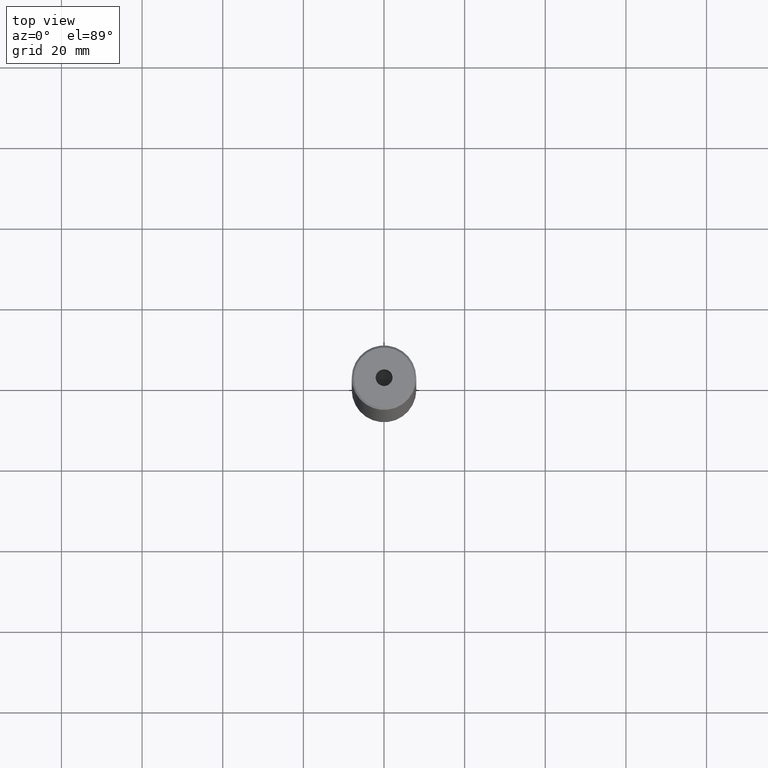
[diagram: clean part render]
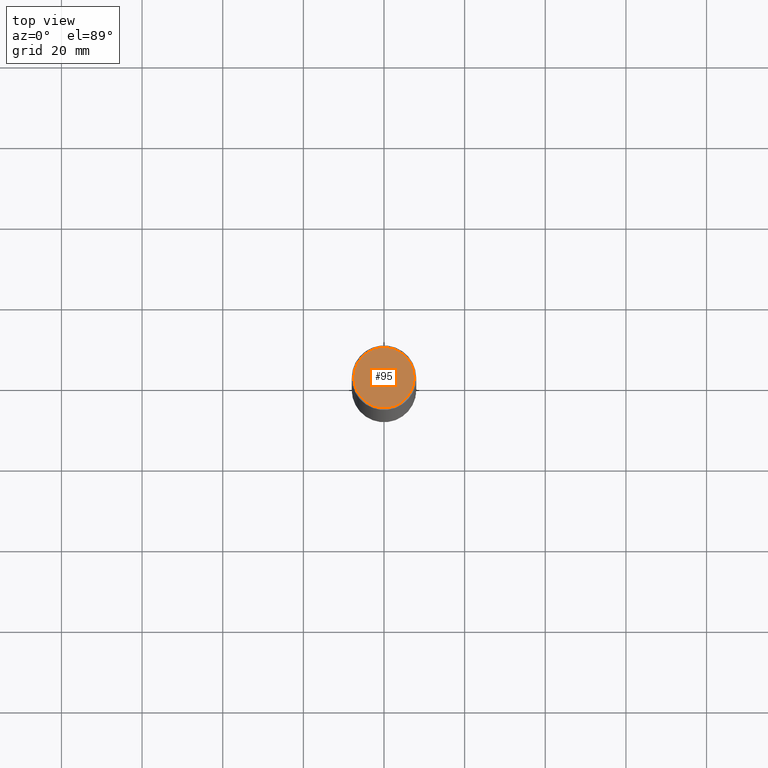
[diagram: same view with one face highlighted and labeled with its STEP entity id]
A machine part, top view. The second image highlights one B-rep face of the part: STEP entity #95.
In plain terms, the highlighted planar face has unit normal (0, -0, 1).
Its self-contained STEP definition (entity closure, byte-faithful):
#4 = AXIS2_PLACEMENT_3D ( 'NONE', #390, #219, #258 ) ;
#39 = EDGE_CURVE ( 'NONE', #92, #523, #436, .T. ) ;
#59 = EDGE_LOOP ( 'NONE', ( #243, #440 ) ) ;
#63 = VERTEX_POINT ( 'NONE', #124 ) ;
#69 = ORIENTED_EDGE ( 'NONE', *, *, #157, .F. ) ;
#92 = VERTEX_POINT ( 'NONE', #216 ) ;
#95 = ADVANCED_FACE ( 'NONE', ( #509, #291 ), #562, .T. ) ;
#108 = AXIS2_PLACEMENT_3D ( 'NONE', #505, #192, #331 ) ;
#124 = CARTESIAN_POINT ( 'NONE',  ( 2.099999999999998757, 0.000000000000000000, -1.990051048614449116E-16 ) ) ;
#141 = AXIS2_PLACEMENT_3D ( 'NONE', #479, #584, #207 ) ;
#157 = EDGE_CURVE ( 'NONE', #63, #366, #208, .T. ) ;
#175 = CIRCLE ( 'NONE', #108, 2.099999999999998757 ) ;
#181 = AXIS2_PLACEMENT_3D ( 'NONE', #556, #422, #209 ) ;
#192 = DIRECTION ( 'NONE',  ( -0.000000000000000000, -0.000000000000000000, 1.000000000000000000 ) ) ;
#195 = AXIS2_PLACEMENT_3D ( 'NONE', #313, #403, #220 ) ;
#198 = EDGE_CURVE ( 'NONE', #523, #92, #411, .T. ) ;
#205 = EDGE_LOOP ( 'NONE', ( #69, #548 ) ) ;
#207 = DIRECTION ( 'NONE',  ( 1.000000000000000000, 0.000000000000000000, 0.000000000000000000 ) ) ;
#208 = CIRCLE ( 'NONE', #141, 2.099999999999998757 ) ;
#209 = DIRECTION ( 'NONE',  ( 1.000000000000000000, 0.000000000000000000, 0.000000000000000000 ) ) ;
#216 = CARTESIAN_POINT ( 'NONE',  ( -7.500000000000034639, 0.000000000000000000, 0.000000000000000000 ) ) ;
#219 = DIRECTION ( 'NONE',  ( -0.000000000000000000, -0.000000000000000000, 1.000000000000000000 ) ) ;
#220 = DIRECTION ( 'NONE',  ( 1.000000000000000000, 0.000000000000000000, 0.000000000000000000 ) ) ;
#243 = ORIENTED_EDGE ( 'NONE', *, *, #39, .T. ) ;
#258 = DIRECTION ( 'NONE',  ( 1.000000000000000000, 0.000000000000000000, 0.000000000000000000 ) ) ;
#291 = FACE_OUTER_BOUND ( 'NONE', #59, .T. ) ;
#313 = CARTESIAN_POINT ( 'NONE',  ( 0.000000000000000000, 0.000000000000000000, 0.000000000000000000 ) ) ;
#331 = DIRECTION ( 'NONE',  ( 1.000000000000000000, 0.000000000000000000, 0.000000000000000000 ) ) ;
#366 = VERTEX_POINT ( 'NONE', #499 ) ;
#390 = CARTESIAN_POINT ( 'NONE',  ( 0.000000000000000000, 0.000000000000000000, 0.000000000000000000 ) ) ;
#403 = DIRECTION ( 'NONE',  ( -0.000000000000000000, -0.000000000000000000, 1.000000000000000000 ) ) ;
#411 = CIRCLE ( 'NONE', #4, 7.500000000000034639 ) ;
#421 = CARTESIAN_POINT ( 'NONE',  ( 7.500000000000034639, 9.491012693392009481E-16, 0.000000000000000000 ) ) ;
#422 = DIRECTION ( 'NONE',  ( 0.000000000000000000, -0.000000000000000000, 1.000000000000000000 ) ) ;
#436 = CIRCLE ( 'NONE', #195, 7.500000000000034639 ) ;
#440 = ORIENTED_EDGE ( 'NONE', *, *, #198, .T. ) ;
#479 = CARTESIAN_POINT ( 'NONE',  ( 0.000000000000000000, 0.000000000000000000, -1.990051048614449116E-16 ) ) ;
#499 = CARTESIAN_POINT ( 'NONE',  ( -2.099999999999998757, 2.571758278209440478E-16, -1.990051048614449116E-16 ) ) ;
#505 = CARTESIAN_POINT ( 'NONE',  ( 0.000000000000000000, 0.000000000000000000, -1.990051048614449116E-16 ) ) ;
#509 = FACE_BOUND ( 'NONE', #205, .T. ) ;
#523 = VERTEX_POINT ( 'NONE', #421 ) ;
#548 = ORIENTED_EDGE ( 'NONE', *, *, #566, .F. ) ;
#556 = CARTESIAN_POINT ( 'NONE',  ( 0.000000000000000000, 0.000000000000000000, 0.000000000000000000 ) ) ;
#562 = PLANE ( 'NONE',  #181 ) ;
#566 = EDGE_CURVE ( 'NONE', #366, #63, #175, .T. ) ;
#584 = DIRECTION ( 'NONE',  ( -0.000000000000000000, -0.000000000000000000, 1.000000000000000000 ) ) ;